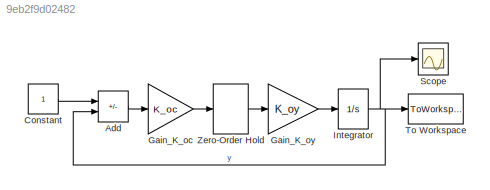
MODEL slx_9eb2f9d02482
KIND model
CONFIG AbsTol = auto
CONFIG EnableMultiTasking = off
CONFIG FixedStep = 0.001
CONFIG MaxStep = auto
CONFIG MinStep = auto
CONFIG RelTol = 1e-6
CONFIG SampleTimeConstraint = Unconstrained
CONFIG SolverName = FixedStepAuto
CONFIG StartTime = 0.0
CONFIG StopTime = 10.0
BLOCK [Sum] Add
  IconShape = rectangular
  Inputs = +-
  Ports = [2, 1]
BLOCK [Constant] Constant
BLOCK [Gain] Gain_K_oc
  Gain = K_oc
BLOCK [Gain] Gain_K_oy
  Gain = K_oy
BLOCK [Integrator] Integrator
  Ports = [1, 1]
BLOCK [Scope] Scope
  Floating = off
  NumInputPorts = 1
  Ports = [1]
  ScopeSpecificationString = Simulink.scopes.TimeScopeBlockCfg('CurrentConfiguration', extmgr.ConfigurationSet(extmgr.Configuration('Core','General UI',true),extmgr.Configuration('Core','Source UI',true),extmgr.Configuration('Sources','WiredSimulink',true),extmgr.Configuration('Visuals','Time Domain',true,'SerializedDisplays',{struct('MinYLimReal','-0.13108','MaxYLimReal','1.17968','YLabelReal','','MinYLimMag','0.00000','MaxY...<+1374ch>
BLOCK [ToWorkspace] To Workspace
  FixptAsFi = on
  MaxDataPoints = inf
  Ports = [1]
  SampleTime = -1
  VariableName = y
BLOCK [ZeroOrderHold] Zero-Order Hold
  SampleTime = T
LINE Add:1 -> Gain_K_oc:1
LINE Constant:1 -> Add:1
LINE Gain_K_oc:1 -> Zero-Order Hold:1
LINE Gain_K_oy:1 -> Integrator:1
NET Integrator:1 -> Add:2, Scope:1, To Workspace:1
LINE Zero-Order Hold:1 -> Gain_K_oy:1
note: NET lines group one-source signal fan-out (src -> all destinations, sorted); 1:1 wires keep LINE
